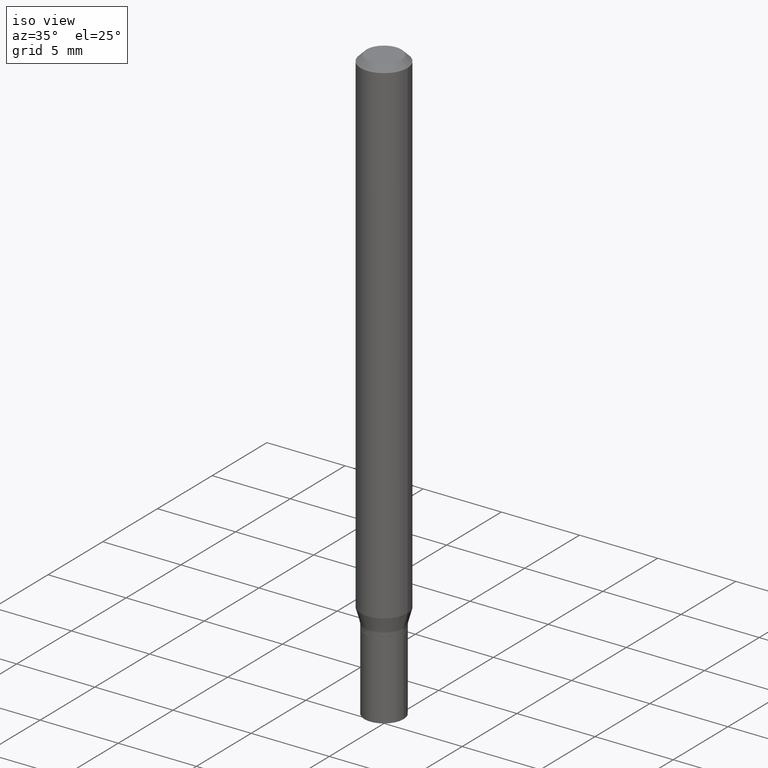
[diagram: clean part render]
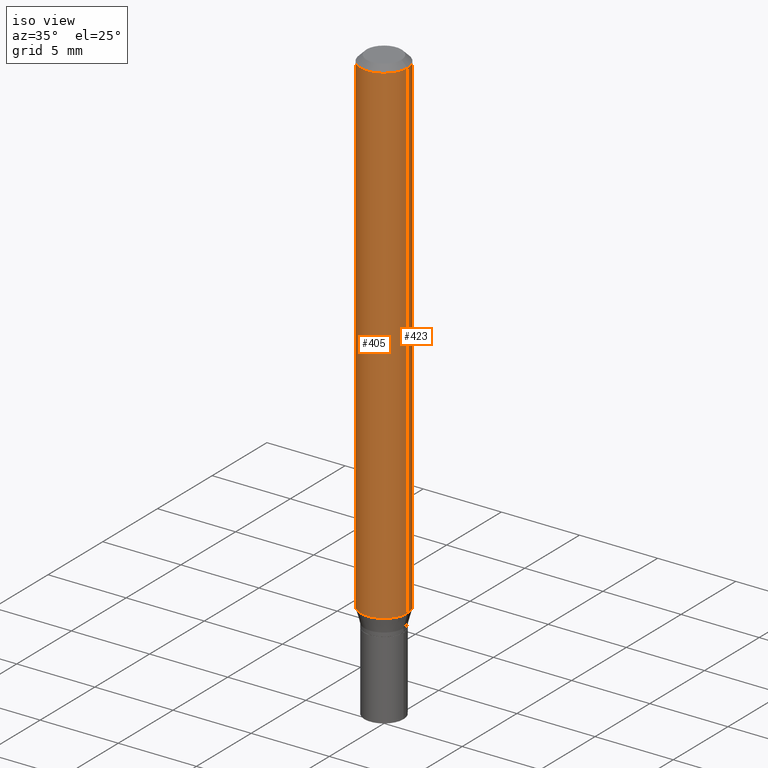
[diagram: same view with one multi-face feature highlighted, each face labeled with its STEP entity id]
A machine part, iso view. The highlighted faces form ONE feature: a constant-radius fillet chain: 2 tangent blend faces with common blend radius 1.4999 mm. The faces share edges in the B-rep.
Their STEP definitions:
[1] entity #423 (Cylinder):
#18 = VERTEX_POINT ( 'NONE', #427 ) ;
#38 = DIRECTION ( 'NONE',  ( -2.445468806185136597E-29, 3.491481338843145583E-15, 1.000000000000000000 ) ) ;
#42 = DIRECTION ( 'NONE',  ( -2.445468806185136877E-29, 3.491481338843145188E-15, 1.000000000000000000 ) ) ;
#44 = CARTESIAN_POINT ( 'NONE',  ( 0.05905000000000000526, -4.123439461173741313E-16, 2.879382386107500571E-30 ) ) ;
#49 = CYLINDRICAL_SURFACE ( 'NONE', #397, 0.05905000000000000526 ) ;
#68 = EDGE_CURVE ( 'NONE', #137, #18, #448, .T. ) ;
#70 = CARTESIAN_POINT ( 'NONE',  ( -0.05905000000000000526, 4.195754854663391971E-16, -2.904631170795522242E-30 ) ) ;
#71 = DIRECTION ( 'NONE',  ( -2.445468806185136597E-29, 3.491481338843145583E-15, 1.000000000000000000 ) ) ;
#82 = CARTESIAN_POINT ( 'NONE',  ( 0.000000000000000000, 0.000000000000000000, 0.000000000000000000 ) ) ;
#89 = EDGE_LOOP ( 'NONE', ( #250, #239, #439, #326 ) ) ;
#90 = EDGE_CURVE ( 'NONE', #312, #18, #254, .T. ) ;
#106 = CARTESIAN_POINT ( 'NONE',  ( 0.05904999999999999832, -4.798480017601685178E-15, -1.256239299545446553 ) ) ;
#137 = VERTEX_POINT ( 'NONE', #170 ) ;
#153 = AXIS2_PLACEMENT_3D ( 'NONE', #298, #38, #403 ) ;
#170 = CARTESIAN_POINT ( 'NONE',  ( -0.05904999999999999832, -3.966560586017971554E-15, -1.256239299545446553 ) ) ;
#214 = AXIS2_PLACEMENT_3D ( 'NONE', #261, #71, #225 ) ;
#222 = VECTOR ( 'NONE', #369, 39.37007874015748143 ) ;
#225 = DIRECTION ( 'NONE',  ( 1.000000000000000000, -6.982962677686273021E-15, 0.000000000000000000 ) ) ;
#227 = LINE ( 'NONE', #44, #449 ) ;
#239 = ORIENTED_EDGE ( 'NONE', *, *, #68, .T. ) ;
#250 = ORIENTED_EDGE ( 'NONE', *, *, #402, .T. ) ;
#254 = CIRCLE ( 'NONE', #153, 0.05905000000000001914 ) ;
#261 = CARTESIAN_POINT ( 'NONE',  ( 3.072094020142255218E-29, -4.386136071484311047E-15, -1.256239299545446553 ) ) ;
#278 = DIRECTION ( 'NONE',  ( 1.000000000000000000, -6.982962677686267499E-15, 4.876176775795936353E-29 ) ) ;
#280 = EDGE_CURVE ( 'NONE', #355, #312, #227, .T. ) ;
#298 = CARTESIAN_POINT ( 'NONE',  ( 3.668203209277705088E-31, -5.237222008264718399E-17, -0.01499999999999999944 ) ) ;
#307 = CARTESIAN_POINT ( 'NONE',  ( 0.05905000000000001914, -4.647161662000214077E-16, -0.01499999999999999944 ) ) ;
#312 = VERTEX_POINT ( 'NONE', #307 ) ;
#326 = ORIENTED_EDGE ( 'NONE', *, *, #280, .F. ) ;
#345 = FACE_OUTER_BOUND ( 'NONE', #89, .T. ) ;
#346 = CIRCLE ( 'NONE', #214, 0.05904999999999999832 ) ;
#355 = VERTEX_POINT ( 'NONE', #106 ) ;
#369 = DIRECTION ( 'NONE',  ( -2.445468806185136877E-29, 3.491481338843145188E-15, 1.000000000000000000 ) ) ;
#397 = AXIS2_PLACEMENT_3D ( 'NONE', #82, #457, #278 ) ;
#402 = EDGE_CURVE ( 'NONE', #355, #137, #346, .T. ) ;
#403 = DIRECTION ( 'NONE',  ( 1.000000000000000000, -6.982962677686266711E-15, 0.000000000000000000 ) ) ;
#423 = ADVANCED_FACE ( 'NONE', ( #345 ), #49, .T. ) ;
#427 = CARTESIAN_POINT ( 'NONE',  ( -0.05905000000000002608, -1.799678660317140162E-15, -0.01499999999999999944 ) ) ;
#439 = ORIENTED_EDGE ( 'NONE', *, *, #90, .F. ) ;
#448 = LINE ( 'NONE', #70, #222 ) ;
#449 = VECTOR ( 'NONE', #42, 39.37007874015748143 ) ;
#457 = DIRECTION ( 'NONE',  ( -2.445468806185136597E-29, 3.491481338843145583E-15, 1.000000000000000000 ) ) ;
[2] entity #405 (Cylinder):
#5 = ORIENTED_EDGE ( 'NONE', *, *, #147, .F. ) ;
#18 = VERTEX_POINT ( 'NONE', #427 ) ;
#24 = DIRECTION ( 'NONE',  ( 1.000000000000000000, -6.982962677686267499E-15, 4.876176775795936353E-29 ) ) ;
#42 = DIRECTION ( 'NONE',  ( -2.445468806185136877E-29, 3.491481338843145188E-15, 1.000000000000000000 ) ) ;
#44 = CARTESIAN_POINT ( 'NONE',  ( 0.05905000000000000526, -4.123439461173741313E-16, 2.879382386107500571E-30 ) ) ;
#68 = EDGE_CURVE ( 'NONE', #137, #18, #448, .T. ) ;
#70 = CARTESIAN_POINT ( 'NONE',  ( -0.05905000000000000526, 4.195754854663391971E-16, -2.904631170795522242E-30 ) ) ;
#77 = DIRECTION ( 'NONE',  ( -2.445468806185136597E-29, 3.491481338843145583E-15, 1.000000000000000000 ) ) ;
#92 = DIRECTION ( 'NONE',  ( 1.000000000000000000, -6.982962677686266711E-15, 0.000000000000000000 ) ) ;
#100 = DIRECTION ( 'NONE',  ( 1.000000000000000000, -6.982962677686273021E-15, 0.000000000000000000 ) ) ;
#106 = CARTESIAN_POINT ( 'NONE',  ( 0.05904999999999999832, -4.798480017601685178E-15, -1.256239299545446553 ) ) ;
#136 = DIRECTION ( 'NONE',  ( -2.445468806185136597E-29, 3.491481338843145583E-15, 1.000000000000000000 ) ) ;
#137 = VERTEX_POINT ( 'NONE', #170 ) ;
#144 = EDGE_CURVE ( 'NONE', #137, #355, #378, .T. ) ;
#147 = EDGE_CURVE ( 'NONE', #18, #312, #273, .T. ) ;
#156 = CARTESIAN_POINT ( 'NONE',  ( 0.000000000000000000, 0.000000000000000000, 0.000000000000000000 ) ) ;
#162 = AXIS2_PLACEMENT_3D ( 'NONE', #362, #136, #100 ) ;
#170 = CARTESIAN_POINT ( 'NONE',  ( -0.05904999999999999832, -3.966560586017971554E-15, -1.256239299545446553 ) ) ;
#176 = DIRECTION ( 'NONE',  ( -2.445468806185136597E-29, 3.491481338843145583E-15, 1.000000000000000000 ) ) ;
#222 = VECTOR ( 'NONE', #369, 39.37007874015748143 ) ;
#227 = LINE ( 'NONE', #44, #449 ) ;
#273 = CIRCLE ( 'NONE', #430, 0.05905000000000001914 ) ;
#280 = EDGE_CURVE ( 'NONE', #355, #312, #227, .T. ) ;
#293 = ORIENTED_EDGE ( 'NONE', *, *, #144, .T. ) ;
#307 = CARTESIAN_POINT ( 'NONE',  ( 0.05905000000000001914, -4.647161662000214077E-16, -0.01499999999999999944 ) ) ;
#312 = VERTEX_POINT ( 'NONE', #307 ) ;
#355 = VERTEX_POINT ( 'NONE', #106 ) ;
#362 = CARTESIAN_POINT ( 'NONE',  ( 3.072094020142255218E-29, -4.386136071484311047E-15, -1.256239299545446553 ) ) ;
#369 = DIRECTION ( 'NONE',  ( -2.445468806185136877E-29, 3.491481338843145188E-15, 1.000000000000000000 ) ) ;
#372 = FACE_OUTER_BOUND ( 'NONE', #437, .T. ) ;
#378 = CIRCLE ( 'NONE', #162, 0.05904999999999999832 ) ;
#385 = ORIENTED_EDGE ( 'NONE', *, *, #68, .F. ) ;
#405 = ADVANCED_FACE ( 'NONE', ( #372 ), #421, .T. ) ;
#419 = AXIS2_PLACEMENT_3D ( 'NONE', #156, #77, #24 ) ;
#421 = CYLINDRICAL_SURFACE ( 'NONE', #419, 0.05905000000000000526 ) ;
#427 = CARTESIAN_POINT ( 'NONE',  ( -0.05905000000000002608, -1.799678660317140162E-15, -0.01499999999999999944 ) ) ;
#430 = AXIS2_PLACEMENT_3D ( 'NONE', #436, #176, #92 ) ;
#436 = CARTESIAN_POINT ( 'NONE',  ( 3.668203209277705088E-31, -5.237222008264718399E-17, -0.01499999999999999944 ) ) ;
#437 = EDGE_LOOP ( 'NONE', ( #385, #293, #441, #5 ) ) ;
#441 = ORIENTED_EDGE ( 'NONE', *, *, #280, .T. ) ;
#448 = LINE ( 'NONE', #70, #222 ) ;
#449 = VECTOR ( 'NONE', #42, 39.37007874015748143 ) ;